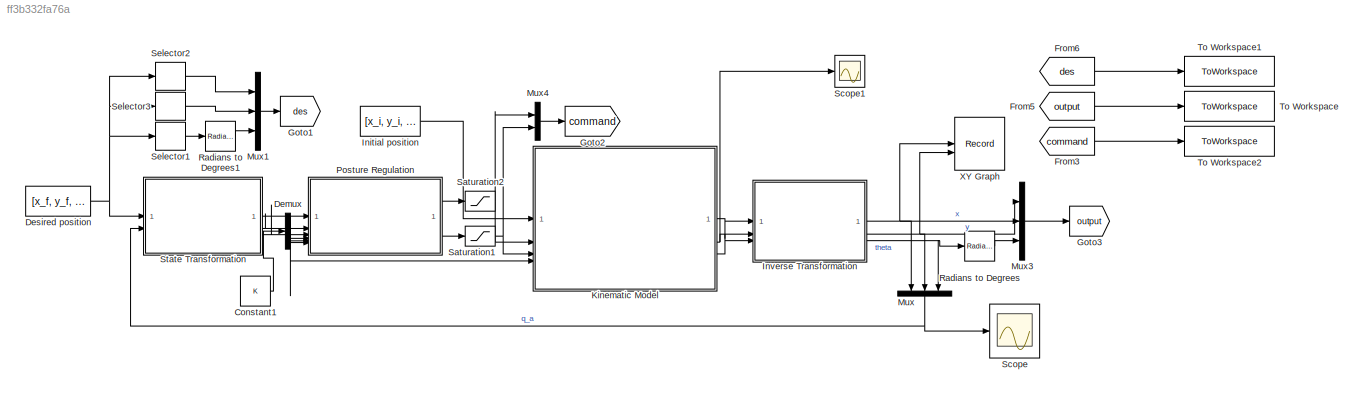
MODEL slx_ff3b332fa76a
KIND model
CONFIG AbsTol = auto
CONFIG EnableMultiTasking = off
CONFIG FixedStep = auto
CONFIG MaxStep = 0.1
CONFIG MinStep = auto
CONFIG RelTol = 1e-3
CONFIG SampleTimeConstraint = Unconstrained
CONFIG SolverName = FixedStepAuto
CONFIG StartTime = 0.0
CONFIG StopTime = 10.0
BLOCK [Constant] Constant1
  Value = K
BLOCK [Demux] Demux
  Outputs = 3
BLOCK [Constant] Desired position
  Value = [x_f, y_f, theta_f]
BLOCK [From] From3
  GotoTag = command
BLOCK [From] From5
  GotoTag = output
BLOCK [From] From6
  GotoTag = des
BLOCK [Goto] Goto1
  GotoTag = des
BLOCK [Goto] Goto2
  GotoTag = command
BLOCK [Goto] Goto3
  GotoTag = output
BLOCK [Constant] Initial position
  Value = [x_i, y_i, theta_i]
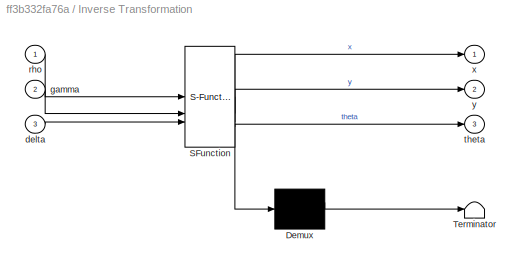
BLOCK [SubSystem] Inverse Transformation
  ErrorFcn = Stateflow.Translate.translate
  PermitHierarchicalResolution = ExplicitOnly
  SFBlockType = MATLAB Function
  TreatAsAtomicUnit = on
BLOCK [Demux] Inverse Transformation/ Demux 
  Outputs = 1
BLOCK [S-Function] Inverse Transformation/ SFunction 
  EnableBusSupport = on
  FunctionName = sf_sfun
  PortCounts = [3 4]
  SFcnIsStateOwnerBlock = off
  SFunctionDeploymentMode = off
  Tag = Stateflow S-Function 1
BLOCK [Terminator] Inverse Transformation/ Terminator 
BLOCK [Inport] Inverse Transformation/delta
  Port = 3
BLOCK [Inport] Inverse Transformation/gamma
  Port = 2
BLOCK [Inport] Inverse Transformation/rho
BLOCK [Outport] Inverse Transformation/theta
  Port = 3
BLOCK [Outport] Inverse Transformation/x
BLOCK [Outport] Inverse Transformation/y
  Port = 2
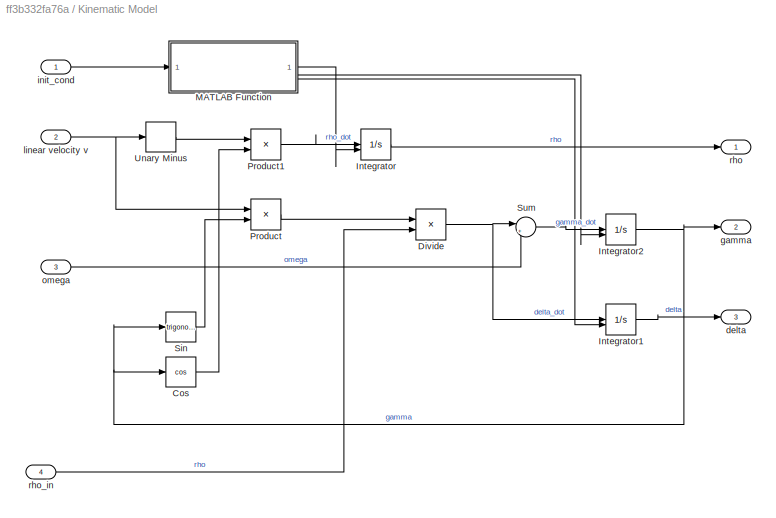
BLOCK [SubSystem] Kinematic Model
BLOCK [Trigonometry] Kinematic Model/Cos
  Operator = cos
BLOCK [Product] Kinematic Model/Divide
  Inputs = */
BLOCK [Integrator] Kinematic Model/Integrator
  InitialConditionSource = external
BLOCK [Integrator] Kinematic Model/Integrator1
  InitialConditionSource = external
BLOCK [Integrator] Kinematic Model/Integrator2
  InitialConditionSource = external
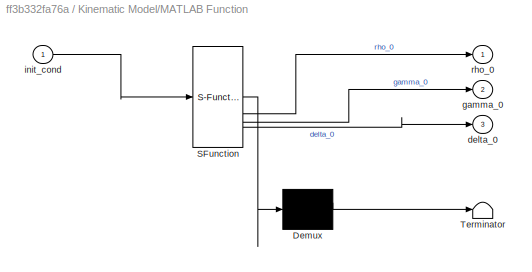
BLOCK [SubSystem] Kinematic Model/MATLAB Function
  ErrorFcn = Stateflow.Translate.translate
  LibrarySourceBlock = simulink/User-Defined\nFunctions/MATLAB Function
  PermitHierarchicalResolution = ExplicitOnly
  SFBlockType = MATLAB Function
  TreatAsAtomicUnit = on
BLOCK [Demux] Kinematic Model/MATLAB Function/ Demux 
  Outputs = 1
BLOCK [S-Function] Kinematic Model/MATLAB Function/ SFunction 
  EnableBusSupport = on
  FunctionName = sf_sfun
  PortCounts = [1 4]
  SFcnIsStateOwnerBlock = off
  SFunctionDeploymentMode = off
  Tag = Stateflow S-Function 9
BLOCK [Terminator] Kinematic Model/MATLAB Function/ Terminator 
BLOCK [Outport] Kinematic Model/MATLAB Function/delta_0
  Port = 3
BLOCK [Outport] Kinematic Model/MATLAB Function/gamma_0
  Port = 2
BLOCK [Inport] Kinematic Model/MATLAB Function/init_cond
BLOCK [Outport] Kinematic Model/MATLAB Function/rho_0
BLOCK [Product] Kinematic Model/Product
BLOCK [Product] Kinematic Model/Product1
BLOCK [Trigonometry] Kinematic Model/Sin
BLOCK [Sum] Kinematic Model/Sum
  Inputs = |+-
BLOCK [UnaryMinus] Kinematic Model/Unary Minus
BLOCK [Outport] Kinematic Model/delta
  Port = 3
BLOCK [Outport] Kinematic Model/gamma
  Port = 2
BLOCK [Inport] Kinematic Model/init_cond
BLOCK [Inport] Kinematic Model/linear velocity v
  Port = 2
BLOCK [Inport] Kinematic Model/omega
  Port = 3
BLOCK [Outport] Kinematic Model/rho
BLOCK [Inport] Kinematic Model/rho_in
  Port = 4
BLOCK [Mux] Mux
  DisplayOption = bar
  Inputs = 3
  NameLocation = left
BLOCK [Mux] Mux1
  DisplayOption = bar
  Inputs = 3
BLOCK [Mux] Mux3
  DisplayOption = bar
  Inputs = 3
BLOCK [Mux] Mux4
  DisplayOption = bar
  Inputs = 2
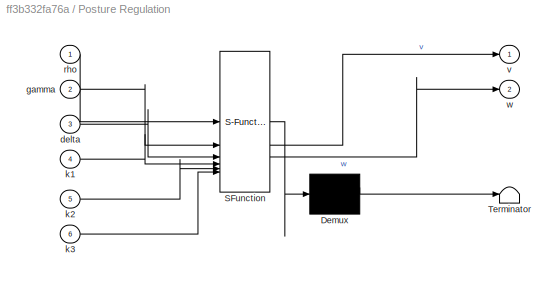
BLOCK [SubSystem] Posture Regulation
  ErrorFcn = Stateflow.Translate.translate
  PermitHierarchicalResolution = ExplicitOnly
  SFBlockType = MATLAB Function
  TreatAsAtomicUnit = on
BLOCK [Demux] Posture Regulation/ Demux 
  Outputs = 1
BLOCK [S-Function] Posture Regulation/ SFunction 
  EnableBusSupport = on
  FunctionName = sf_sfun
  PortCounts = [6 3]
  SFcnIsStateOwnerBlock = off
  SFunctionDeploymentMode = off
  Tag = Stateflow S-Function 3
BLOCK [Terminator] Posture Regulation/ Terminator 
BLOCK [Inport] Posture Regulation/delta
  Port = 3
BLOCK [Inport] Posture Regulation/gamma
  Port = 2
BLOCK [Inport] Posture Regulation/k1
  Port = 4
BLOCK [Inport] Posture Regulation/k2
  Port = 5
BLOCK [Inport] Posture Regulation/k3
  Port = 6
BLOCK [Inport] Posture Regulation/rho
BLOCK [Outport] Posture Regulation/v
BLOCK [Outport] Posture Regulation/w
  Port = 2
BLOCK [Reference] Radians to Degrees  REF=simulink_extras/Transformations/Radians
to Degrees
  SourceBlock = simulink_extras/Transformations/Radians\nto Degrees
  SourceType = RadiansToDegrees
BLOCK [Reference] Radians to Degrees1  REF=simulink_extras/Transformations/Radians
to Degrees
  SourceBlock = simulink_extras/Transformations/Radians\nto Degrees
  SourceType = RadiansToDegrees
BLOCK [Saturate] Saturation1
  LowerLimit = -2
  UpperLimit = 2
BLOCK [Saturate] Saturation2
  LowerLimit = -2
  UpperLimit = 2
BLOCK [Scope] Scope
  Floating = off
  NumInputPorts = 1
  ScopeSpecificationString = Simulink.scopes.TimeScopeBlockCfg('CurrentConfiguration', extmgr.ConfigurationSet(extmgr.Configuration('Core','General UI',true),extmgr.Configuration('Core','Source UI',true),extmgr.Configuration('Sources','WiredSimulink',true),extmgr.Configuration('Visuals','Time Domain',true),extmgr.Configuration('Tools','Plot Navigation',true),extmgr.Configuration('Tools','Measurements',true)),'Version','2022b'...<+1ch>
BLOCK [Scope] Scope1
  Floating = off
  NumInputPorts = 1
  ScopeSpecificationString = Simulink.scopes.TimeScopeBlockCfg('CurrentConfiguration', extmgr.ConfigurationSet(extmgr.Configuration('Core','General UI',true),extmgr.Configuration('Core','Source UI',true),extmgr.Configuration('Sources','WiredSimulink',true,'DataLoggingVariableName','ScopeData1'),extmgr.Configuration('Visuals','Time Domain',true,'SerializedDisplays',{struct('MinYLimReal','-79.7','MaxYLimReal','22.84066','YLabel...<+1469ch>
BLOCK [Selector] Selector1
  IndexOptions = Index vector (dialog)
  Indices = 3
  InputPortWidth = 3
  OutputSizes = 1
BLOCK [Selector] Selector2
  IndexOptions = Index vector (dialog)
  Indices = 1
  InputPortWidth = 3
  OutputSizes = 1
BLOCK [Selector] Selector3
  IndexOptions = Index vector (dialog)
  Indices = 2
  InputPortWidth = 3
  OutputSizes = 1
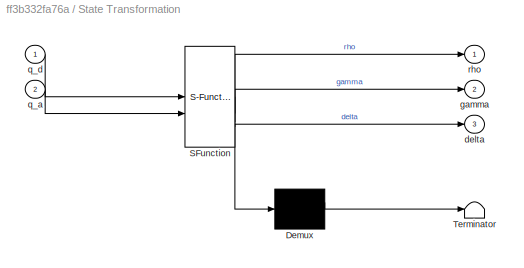
BLOCK [SubSystem] State Transformation
  ErrorFcn = Stateflow.Translate.translate
  PermitHierarchicalResolution = ExplicitOnly
  SFBlockType = MATLAB Function
  TreatAsAtomicUnit = on
BLOCK [Demux] State Transformation/ Demux 
  Outputs = 1
BLOCK [S-Function] State Transformation/ SFunction 
  EnableBusSupport = on
  FunctionName = sf_sfun
  PortCounts = [2 4]
  SFcnIsStateOwnerBlock = off
  SFunctionDeploymentMode = off
  Tag = Stateflow S-Function 2
BLOCK [Terminator] State Transformation/ Terminator 
BLOCK [Outport] State Transformation/delta
  Port = 3
BLOCK [Outport] State Transformation/gamma
  Port = 2
BLOCK [Inport] State Transformation/q_a
  Port = 2
BLOCK [Inport] State Transformation/q_d
BLOCK [Outport] State Transformation/rho
BLOCK [ToWorkspace] To Workspace
  FixptAsFi = on
  MaxDataPoints = inf
  SampleTime = -1
  SaveFormat = Structure With Time
  VariableName = output
BLOCK [ToWorkspace] To Workspace1
  FixptAsFi = on
  MaxDataPoints = inf
  SampleTime = -1
  SaveFormat = Structure With Time
  VariableName = reference
BLOCK [ToWorkspace] To Workspace2
  FixptAsFi = on
  MaxDataPoints = inf
  SampleTime = -1
  SaveFormat = Structure With Time
  VariableName = command
BLOCK [Record] XY Graph
  CompatibilityTag = XY
  FileSettingsInternal = {"entries":[{"content":{"excelSettings":{"content":{},"type":"Streamout.ExcelSettings"}},"type":"Streamout.FileSettingStorage","uuid":"c67a5f3d-077a-4888-809e-c2fef9ca71b1"}],"packageUris":["http://schema.mathworks.com/mf0/streamout_blocks/R2020a"],"version":"1.0"}
  Layout = [1 1]
  SignalsInternal = {"entries":[{"content":{"signals":[{"content":{"blockPath":["Posture_Regulation_Singularity/XY Graph"],"channel":[],"dimensions":[1],"domain":"Posture_Regulation_Singularity/XY Graph","lineColor":"#a2142f","plots":[1],"port":1,"sid":[""],"signalID":305,"signalName":"x"},"type":"RecordBlkView.Signal","uuid":"d76dd3e0-b632-4dfe-a97e-b48e5c8288c6"},{"content":{"blockPath":["Posture_Regulation_Singula...<+437ch>
  VisualizationBindings = {"xyplotplugin":{"info":[{"series":[{"bindingParametersList":[{"parameter":"X-Axis","signalID":305,"signalName":"x"},{"parameter":"Y-Axis","signalID":309,"signalName":"y"}],"seriesID":1406}],"subplotID":1}]}}
LINE Constant1:1 -> Demux:1
LINE Demux:1 -> Posture Regulation:4
LINE Demux:2 -> Posture Regulation:5
LINE Demux:3 -> Posture Regulation:6
NET Desired position:1 -> Selector1:1, Selector2:1, Selector3:1, State Transformation:1
LINE From3:1 -> To Workspace2:1
LINE From5:1 -> To Workspace:1
LINE From6:1 -> To Workspace1:1
LINE Initial position:1 -> Kinematic Model:1
NET Inverse Transformation:1 -> Mux3:1, Mux:1, XY Graph:1
NET Inverse Transformation:2 -> Mux3:2, Mux:2, XY Graph:2
NET Inverse Transformation:3 -> Mux:3, Radians to Degrees:1
LINE Kinematic Model/Cos:1 -> Kinematic Model/Product1:2
NET Kinematic Model/Divide:1 -> Kinematic Model/Integrator1:1, Kinematic Model/Sum:1
LINE Kinematic Model/Integrator1:1 -> Kinematic Model/delta:1
NET Kinematic Model/Integrator2:1 -> Kinematic Model/Cos:1, Kinematic Model/Sin:1, Kinematic Model/gamma:1
LINE Kinematic Model/Integrator:1 -> Kinematic Model/rho:1
LINE Kinematic Model/MATLAB Function:1 -> Kinematic Model/Integrator:2
LINE Kinematic Model/MATLAB Function:2 -> Kinematic Model/Integrator2:2
LINE Kinematic Model/MATLAB Function:3 -> Kinematic Model/Integrator1:2
LINE Kinematic Model/Product1:1 -> Kinematic Model/Integrator:1
LINE Kinematic Model/Product:1 -> Kinematic Model/Divide:1
LINE Kinematic Model/Sin:1 -> Kinematic Model/Product:2
LINE Kinematic Model/Sum:1 -> Kinematic Model/Integrator2:1
LINE Kinematic Model/Unary Minus:1 -> Kinematic Model/Product1:1
LINE Kinematic Model/init_cond:1 -> Kinematic Model/MATLAB Function:1
NET Kinematic Model/linear velocity v:1 -> Kinematic Model/Product:1, Kinematic Model/Unary Minus:1
LINE Kinematic Model/omega:1 -> Kinematic Model/Sum:2
LINE Kinematic Model/rho_in:1 -> Kinematic Model/Divide:2
LINE Kinematic Model:1 -> Inverse Transformation:1
NET Kinematic Model:2 -> Inverse Transformation:2, Scope1:1
LINE Kinematic Model:3 -> Inverse Transformation:3
LINE Mux1:1 -> Goto1:1
LINE Mux3:1 -> Goto3:1
LINE Mux4:1 -> Goto2:1
NET Mux:1 -> Scope:1, State Transformation:2
LINE Posture Regulation:1 -> Saturation2:1
LINE Posture Regulation:2 -> Saturation1:1
LINE Radians to Degrees1:1 -> Mux1:3
LINE Radians to Degrees:1 -> Mux3:3
NET Saturation1:1 -> Kinematic Model:3, Mux4:2
NET Saturation2:1 -> Kinematic Model:2, Mux4:1
LINE Selector1:1 -> Radians to Degrees1:1
LINE Selector2:1 -> Mux1:1
LINE Selector3:1 -> Mux1:2
NET State Transformation:1 -> Kinematic Model:4, Posture Regulation:1
LINE State Transformation:2 -> Posture Regulation:2
LINE State Transformation:3 -> Posture Regulation:3
note: NET lines group one-source signal fan-out (src -> all destinations, sorted); 1:1 wires keep LINE
CHART Inverse Transformation states=1 transitions=1
  STATE_LABEL 'eML_blk_kernel()'
  STATE_LABEL 'SCRIPT:\nfunction [x,y,theta] = fcn(rho,gamma,delta)\n\n    x = - rho * cos(delta);\n    y = - rho * sin(delta);\n    theta = delta - gamma;\n    \nend\n\n'
CHART State Transformation states=1 transitions=1
  STATE_LABEL 'eML_blk_kernel()'
  STATE_LABEL 'SCRIPT:\nfunction [rho,gamma,delta] = fcn(q_d, q_a)\n\n    e_x = q_d(1) - q_a(1);\n    e_y = q_d(2) - q_a(2);\n    e_theta = q_d(3) - q_a(3);\n   \n    rho = sqrt(e_x^2 + e_y^2);\n    gamma = mod(atan2(e_y,e_x),2*pi) - q_a(3);\n    delta = gamma - e_theta;\n\nend'
CHART Posture Regulation states=1 transitions=1
  STATE_LABEL 'eML_blk_kernel()'
  STATE_LABEL 'SCRIPT:\nfunction [v,w] = fcn(rho,gamma,delta,k1,k2,k3)\n\n    v = k1 * rho * cos(gamma);\n    w = k2 * gamma + k1 *(sin(gamma)*cos(gamma))*(gamma + k3 * delta)/gamma;\n\n    % handling the singularity of v \n    if abs(v) < 10^-4\n        if v > 0\n            v = 10^-4;\n        else\n            v = -10^-4;\n        end   \n    end    \n\nend\n'
CHART Kinematic Model/MATLAB Function states=1 transitions=1
  STATE_LABEL 'eML_blk_kernel()'
  STATE_LABEL 'SCRIPT:\nfunction [rho_0, gamma_0, delta_0] = fcn(init_cond)\n\nx_0 = init_cond(1);\ny_0 = init_cond(2);\ntheta_0 = init_cond(3);\n\n\nrho_0 = sqrt(x_0^2 + y_0^2);\ngamma_0 = atan2(y_0,x_0) - theta_0 + pi;\ndelta_0 = gamma_0 + theta_0;'
CHART  states=0 transitions=0
CHART  states=0 transitions=0
CHART  states=0 transitions=0
CHART  states=0 transitions=0
